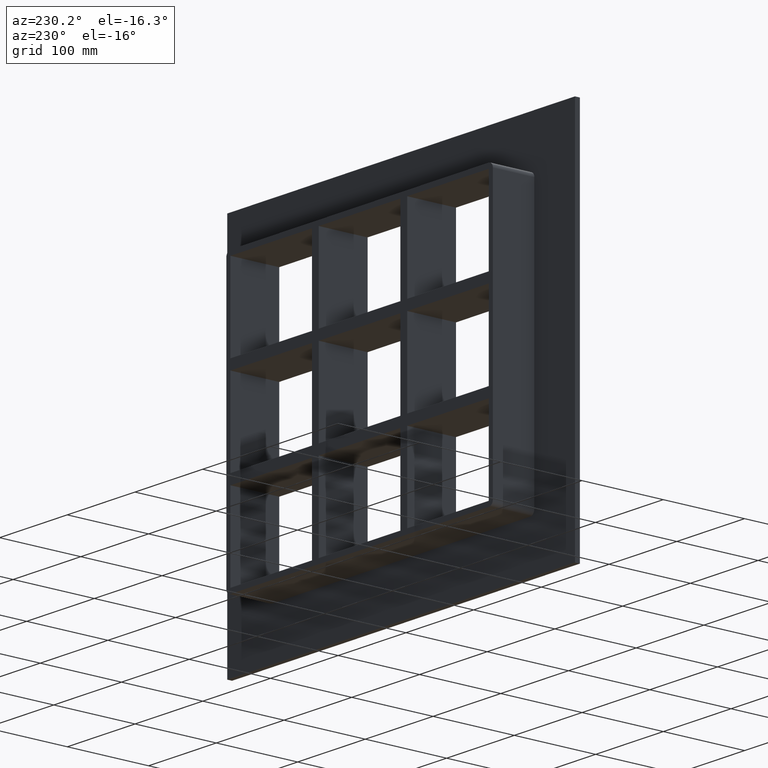
[diagram: clean part render]
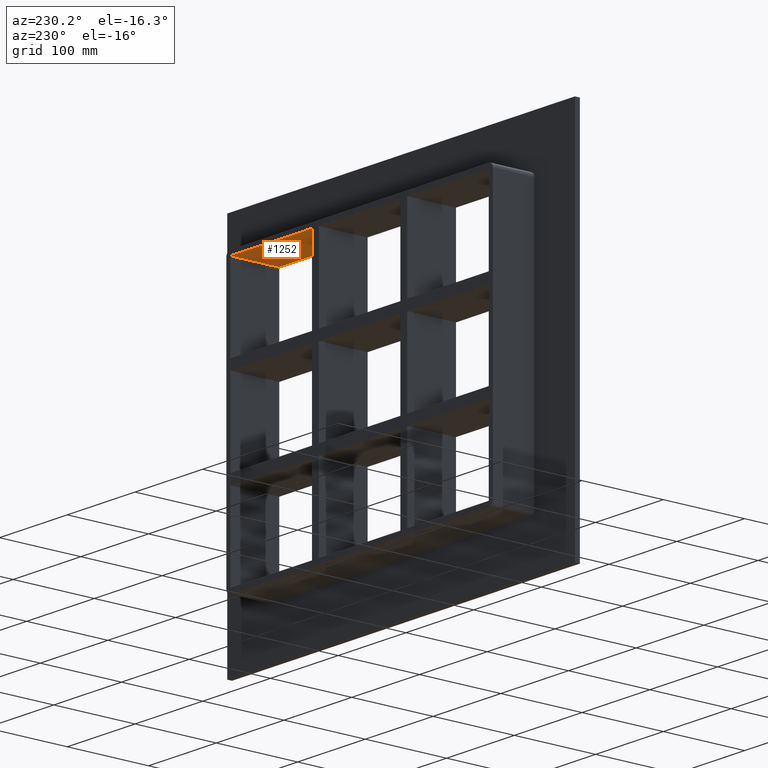
[diagram: same view with one face highlighted and labeled with its STEP entity id]
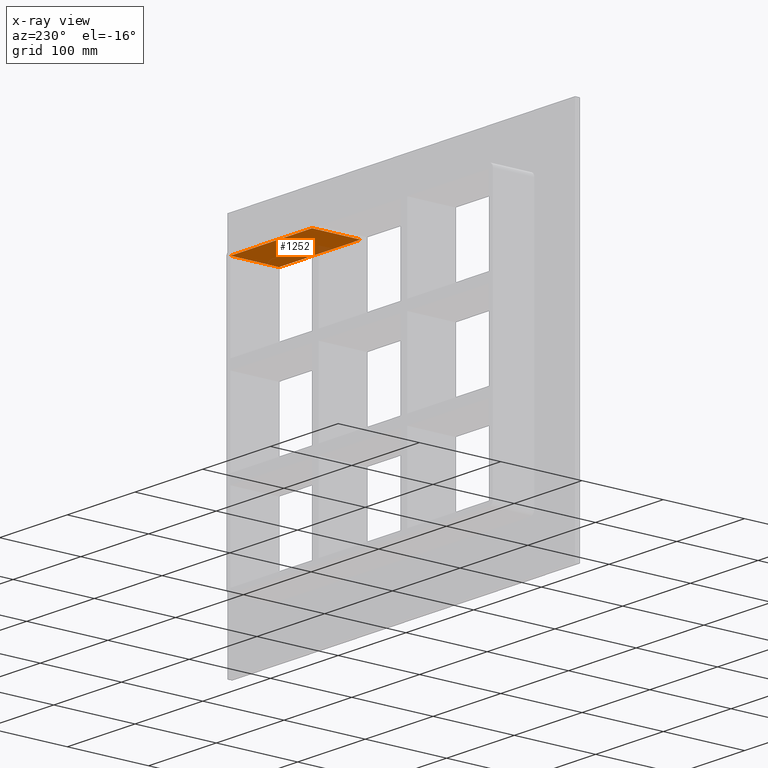
[diagram: x-ray of the same camera — body ghosted, the highlighted face saturated]
A machine part, auxiliary view. The second image highlights one B-rep face of the part: STEP entity #1252.
The next image is the same camera in x-ray: the body ghosted, the highlighted face saturated — about 5% of this face is hidden behind the body in this view.
In plain terms, the highlighted planar face has unit normal (0, 0, 1).
Its self-contained STEP definition (entity closure, byte-faithful):
#376=CARTESIAN_POINT('',(190.75000000000006,-3.0,163.50000000000006));
#377=VERTEX_POINT('',#376);
#384=CARTESIAN_POINT('',(190.75000000000006,57.0,163.50000000000006));
#385=VERTEX_POINT('',#384);
#386=CARTESIAN_POINT('',(190.75000000000006,-3.0,163.50000000000006));
#387=DIRECTION('',(0.0,1.0,0.0));
#388=VECTOR('',#387,60.0);
#389=LINE('',#386,#388);
#390=EDGE_CURVE('',#377,#385,#389,.T.);
#438=CARTESIAN_POINT('',(70.250000000003638,57.0,163.50000000000006));
#439=VERTEX_POINT('',#438);
#446=CARTESIAN_POINT('',(70.250000000003638,-3.0,163.50000000000006));
#447=VERTEX_POINT('',#446);
#448=CARTESIAN_POINT('',(70.250000000003638,-3.0,163.50000000000006));
#449=DIRECTION('',(0.0,1.0,0.0));
#450=VECTOR('',#449,60.000000000000007);
#451=LINE('',#448,#450);
#452=EDGE_CURVE('',#447,#439,#451,.T.);
#650=CARTESIAN_POINT('',(190.75000000000006,57.0,163.50000000000006));
#651=DIRECTION('',(-1.0,0.0,0.0));
#652=VECTOR('',#651,120.4999999999964);
#653=LINE('',#650,#652);
#654=EDGE_CURVE('',#385,#439,#653,.T.);
#1132=CARTESIAN_POINT('',(70.250000000003652,-3.0,163.50000000000006));
#1133=DIRECTION('',(1.0,0.0,0.0));
#1134=VECTOR('',#1133,120.4999999999964);
#1135=LINE('',#1132,#1134);
#1136=EDGE_CURVE('',#447,#377,#1135,.T.);
#1241=CARTESIAN_POINT('',(-190.75000000000003,0.0,163.50000000000006));
#1242=DIRECTION('',(0.0,0.0,1.0));
#1243=DIRECTION('',(1.0,0.0,0.0));
#1244=AXIS2_PLACEMENT_3D('',#1241,#1242,#1243);
#1245=PLANE('',#1244);
#1246=ORIENTED_EDGE('',*,*,#452,.T.);
#1247=ORIENTED_EDGE('',*,*,#654,.F.);
#1248=ORIENTED_EDGE('',*,*,#390,.F.);
#1249=ORIENTED_EDGE('',*,*,#1136,.F.);
#1250=EDGE_LOOP('',(#1246,#1247,#1248,#1249));
#1251=FACE_OUTER_BOUND('',#1250,.T.);
#1252=ADVANCED_FACE('',(#1251),#1245,.F.);